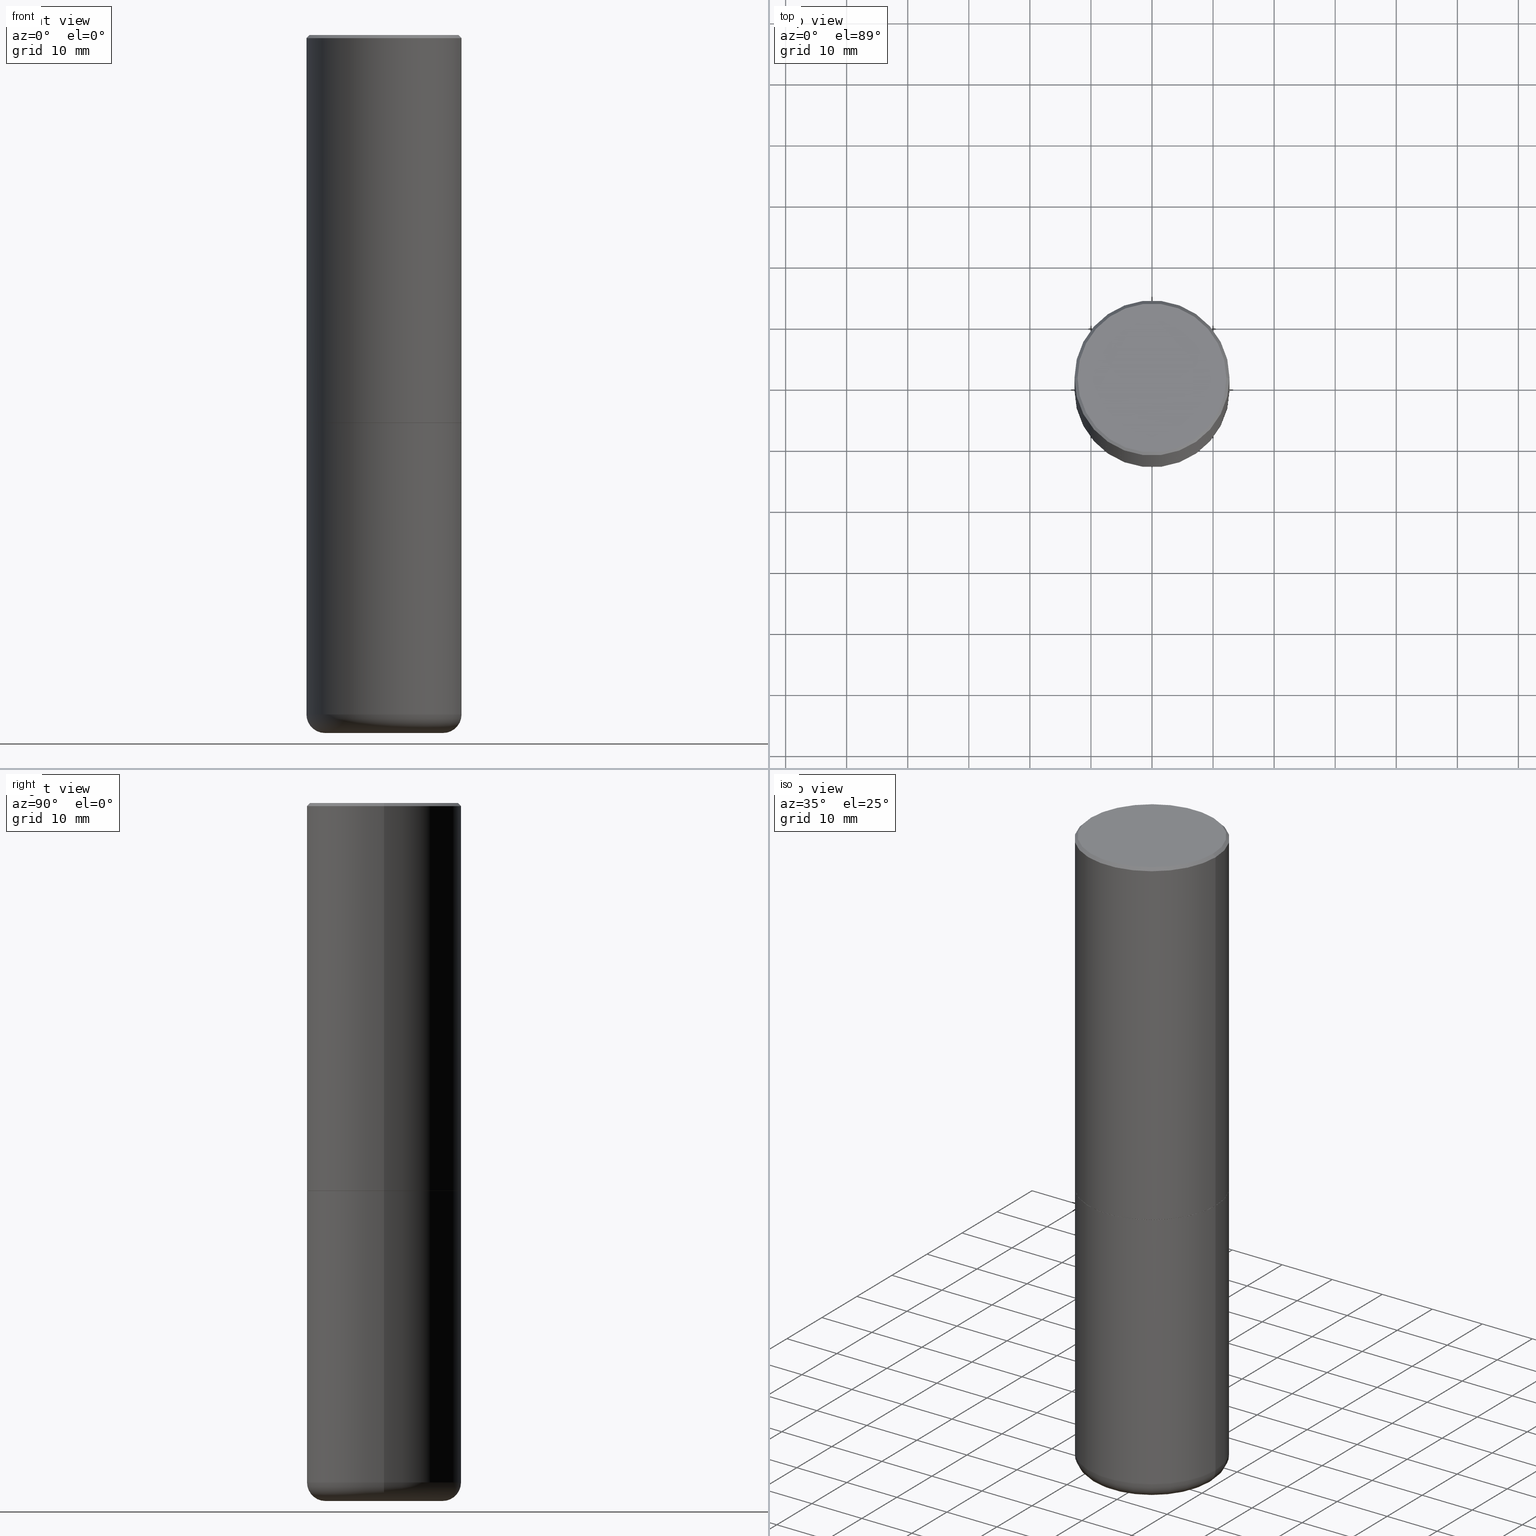
[diagram: canonical four-view strip — front | top / right | iso, engineering-drawing reading convention]
A machine part, canonical four-view strip (front | top / right | iso — engineering-drawing reading convention). The complete STEP part file that produces these views, byte-faithful:
ISO-10303-21;
HEADER;
FILE_DESCRIPTION (( 'STEP AP203' ),
    '1' );
FILE_NAME ('37148.STEP',
    '2024-03-01T21:03:04',
    ( '' ),
    ( '' ),
    'SwSTEP 2.0',
    'SolidWorks 2023',
    '' );
FILE_SCHEMA (( 'CONFIG_CONTROL_DESIGN' ));
ENDSEC;

DATA;
#1 = AXIS2_PLACEMENT_3D ( 'NONE', #98, #64, #35 ) ;
#2 = VECTOR ( 'NONE', #333, 39.37007874015748143 ) ;
#3 = CARTESIAN_POINT ( 'NONE',  ( 0.3799999999999999489, -1.836519184231493383E-14, -4.499999999999999112 ) ) ;
#4 = CYLINDRICAL_SURFACE ( 'NONE', #15, 0.5000000000000001110 ) ;
#5 = CARTESIAN_POINT ( 'NONE',  ( -0.4999999999999998335, -1.173997458533247776E-14, -4.379999999999999893 ) ) ;
#6 = DIRECTION ( 'NONE',  ( -2.445468806185136597E-29, 3.491481338843145583E-15, 1.000000000000000000 ) ) ;
#7 = CARTESIAN_POINT ( 'NONE',  ( 0.000000000000000000, 0.000000000000000000, 0.000000000000000000 ) ) ;
#8 = AXIS2_PLACEMENT_3D ( 'NONE', #146, #118, #50 ) ;
#9 = TOROIDAL_SURFACE ( 'NONE', #139, 0.3799999999999999489, 0.1199999999999996764 ) ;
#10 = DIRECTION ( 'NONE',  ( -2.445468806185136597E-29, 3.491481338843145583E-15, 1.000000000000000000 ) ) ;
#11 = ADVANCED_FACE ( 'NONE', ( #147 ), #414, .F. ) ;
#12 = CARTESIAN_POINT ( 'NONE',  ( 6.113672015462842613E-29, -8.728703347107864943E-15, -2.500000000000000000 ) ) ;
#13 = DIRECTION ( 'NONE',  ( 2.445468806185136597E-29, -3.491481338843145583E-15, -1.000000000000000000 ) ) ;
#14 = PERSON_AND_ORGANIZATION ( #163, #249 ) ;
#15 = AXIS2_PLACEMENT_3D ( 'NONE', #353, #357, #191 ) ;
#16 = PERSON_AND_ORGANIZATION_ROLE ( 'design_supplier' ) ;
#17 = CARTESIAN_POINT ( 'NONE',  ( 4.890937612370299433E-31, -6.982962677686328587E-17, -0.02000000000000010797 ) ) ;
#18 = ORIENTED_EDGE ( 'NONE', *, *, #137, .T. ) ;
#19 = APPLICATION_PROTOCOL_DEFINITION ( 'international standard', 'config_control_design', 1994, #94 ) ;
#20 = CALENDAR_DATE ( 2024, 1, 3 ) ;
#21 = DIRECTION ( 'NONE',  ( -2.445468806185136597E-29, 3.491481338843145583E-15, 1.000000000000000000 ) ) ;
#22 = VERTEX_POINT ( 'NONE', #25 ) ;
#23 =( NAMED_UNIT ( * ) PLANE_ANGLE_UNIT ( ) SI_UNIT ( $, .RADIAN. ) );
#24 = PRODUCT_DEFINITION_FORMATION_WITH_SPECIFIED_SOURCE ( 'ANY', '', #415, .NOT_KNOWN. ) ;
#25 = CARTESIAN_POINT ( 'NONE',  ( -0.5000000000000002220, -8.448070674724393209E-16, -2.499000000000000110 ) ) ;
#26 = EDGE_CURVE ( 'NONE', #251, #304, #90, .T. ) ;
#27 = PERSON_AND_ORGANIZATION ( #163, #249 ) ;
#28 = ORIENTED_EDGE ( 'NONE', *, *, #315, .T. ) ;
#29 = ORIENTED_EDGE ( 'NONE', *, *, #315, .F. ) ;
#30 = CLOSED_SHELL ( 'NONE', ( #154, #378, #11, #84, #349, #155 ) ) ;
#31 = ORIENTED_EDGE ( 'NONE', *, *, #293, .F. ) ;
#32 = CARTESIAN_POINT ( 'NONE',  ( 0.4989999999999999991, -1.221320172327331228E-14, -2.500000000000000000 ) ) ;
#33 = ADVANCED_BREP_SHAPE_REPRESENTATION ( '37148', ( #81, #223, #294 ), #389 ) ;
#34 = FACE_OUTER_BOUND ( 'NONE', #402, .T. ) ;
#35 = DIRECTION ( 'NONE',  ( 1.000000000000000000, -6.982962677686254878E-15, 0.000000000000000000 ) ) ;
#36 = VECTOR ( 'NONE', #356, 39.37007874015748143 ) ;
#37 = DIRECTION ( 'NONE',  ( 1.000000000000000000, -6.982962677686266711E-15, 0.000000000000000000 ) ) ;
#38 = PLANE ( 'NONE',  #85 ) ;
#39 = CC_DESIGN_APPROVAL ( #369, ( #24 ) ) ;
#40 = DIRECTION ( 'NONE',  ( -1.000000000000000000, 6.982962677686265922E-15, 0.000000000000000000 ) ) ;
#41 = ORIENTED_EDGE ( 'NONE', *, *, #124, .F. ) ;
#42 =( CONVERSION_BASED_UNIT ( 'INCH', #400 ) LENGTH_UNIT ( ) NAMED_UNIT ( #173 ) );
#43 = EDGE_LOOP ( 'NONE', ( #150, #361 ) ) ;
#44 = CONICAL_SURFACE ( 'NONE', #207, 0.5000000000000001110, 0.7853981633974458365 ) ;
#45 = CARTESIAN_POINT ( 'NONE',  ( 4.890937612370299433E-31, -6.982962677686328587E-17, -0.02000000000000010797 ) ) ;
#46 = UNCERTAINTY_MEASURE_WITH_UNIT (LENGTH_MEASURE( 1.000000000000000082E-05 ), #42, 'distance_accuracy_value', 'NONE');
#47 = DIRECTION ( 'NONE',  ( -2.445468806185136597E-29, 3.491481338843145583E-15, 1.000000000000000000 ) ) ;
#48 = CARTESIAN_POINT ( 'NONE',  ( 6.113672015462842613E-29, -8.728703347107864943E-15, -2.500000000000000000 ) ) ;
#49 = CARTESIAN_POINT ( 'NONE',  ( 1.071115337109089838E-28, -1.529268826413297711E-14, -4.379999999999999893 ) ) ;
#50 = DIRECTION ( 'NONE',  ( -1.000000000000000000, 6.982962677686265922E-15, -4.876176775795935793E-29 ) ) ;
#51 = CARTESIAN_POINT ( 'NONE',  ( -0.4989999999999999991, -5.177796641316741831E-15, -2.500000000000000000 ) ) ;
#52 = CONICAL_SURFACE ( 'NONE', #367, 0.5000000000000001110, 0.7853981633974458365 ) ;
#53 = EDGE_LOOP ( 'NONE', ( #277, #145 ) ) ;
#54 = CC_DESIGN_PERSON_AND_ORGANIZATION_ASSIGNMENT ( #204, #411, ( #130 ) ) ;
#55 = ORIENTED_EDGE ( 'NONE', *, *, #343, .T. ) ;
#56 = DATE_AND_TIME ( #129, #329 ) ;
#57 = EDGE_LOOP ( 'NONE', ( #309, #376, #18, #107 ) ) ;
#58 = EDGE_CURVE ( 'NONE', #250, #240, #161, .T. ) ;
#59 = CARTESIAN_POINT ( 'NONE',  ( 0.000000000000000000, 0.000000000000000000, 0.000000000000000000 ) ) ;
#60 = DIRECTION ( 'NONE',  ( -2.445468806185136597E-29, 3.491481338843145583E-15, 1.000000000000000000 ) ) ;
#61 = VECTOR ( 'NONE', #292, 39.37007874015748143 ) ;
#62 = CC_DESIGN_SECURITY_CLASSIFICATION ( #254, ( #24 ) ) ;
#63 = FACE_OUTER_BOUND ( 'NONE', #364, .T. ) ;
#64 = DIRECTION ( 'NONE',  ( -6.982962677686266711E-15, -1.000000000000000000, 3.491481338843145583E-15 ) ) ;
#65 = APPROVAL_DATE_TIME ( #393, #188 ) ;
#66 = DIRECTION ( 'NONE',  ( 1.000000000000000000, -6.982962677686266711E-15, 0.000000000000000000 ) ) ;
#67 = APPROVAL_PERSON_ORGANIZATION ( #274, #188, #406 ) ;
#68 = DIRECTION ( 'NONE',  ( 1.000000000000000000, -6.982962677686265922E-15, 0.000000000000000000 ) ) ;
#69 = CARTESIAN_POINT ( 'NONE',  ( 1.071115337109089838E-28, -1.529268826413297711E-14, -4.379999999999999893 ) ) ;
#70 = LINE ( 'NONE', #109, #96 ) ;
#71 = DIRECTION ( 'NONE',  ( 0.7071067811865457964, -7.319954787623249734E-15, -0.7071067811865492381 ) ) ;
#72 = ORIENTED_EDGE ( 'NONE', *, *, #293, .T. ) ;
#73 = DIRECTION ( 'NONE',  ( 1.000000000000000000, -6.982962677686266711E-15, 0.000000000000000000 ) ) ;
#74 = CIRCLE ( 'NONE', #317, 0.5000000000000002220 ) ;
#75 = AXIS2_PLACEMENT_3D ( 'NONE', #17, #331, #68 ) ;
#76 = CALENDAR_DATE ( 2024, 1, 3 ) ;
#77 = DIRECTION ( 'NONE',  ( -2.445468806185136597E-29, 3.491481338843145583E-15, 1.000000000000000000 ) ) ;
#78 = ADVANCED_FACE ( 'NONE', ( #280 ), #374, .F. ) ;
#79 = VERTEX_POINT ( 'NONE', #321 ) ;
#80 = CARTESIAN_POINT ( 'NONE',  ( 0.5000000000000002220, -1.221669320461215845E-14, -2.499000000000000110 ) ) ;
#81 = MANIFOLD_SOLID_BREP ( 'Body-Move/Copy2[1]', #30 ) ;
#82 = EDGE_CURVE ( 'NONE', #370, #119, #328, .T. ) ;
#83 = DIRECTION ( 'NONE',  ( 1.000000000000000000, -6.982962677686266711E-15, 4.878011538933552085E-29 ) ) ;
#84 = ADVANCED_FACE ( 'NONE', ( #286 ), #92, .T. ) ;
#85 = AXIS2_PLACEMENT_3D ( 'NONE', #158, #219, #291 ) ;
#86 = CARTESIAN_POINT ( 'NONE',  ( 6.113672015462842613E-29, -8.728703347107864943E-15, -2.500000000000000000 ) ) ;
#87 = ORIENTED_EDGE ( 'NONE', *, *, #58, .T. ) ;
#88 = APPROVAL ( #270, 'UNSPECIFIED' ) ;
#89 = ORIENTED_EDGE ( 'NONE', *, *, #58, .F. ) ;
#90 = CIRCLE ( 'NONE', #114, 0.1199999999999996764 ) ;
#91 = CIRCLE ( 'NONE', #156, 0.5000000000000001110 ) ;
#92 = CYLINDRICAL_SURFACE ( 'NONE', #232, 0.5000000000000000000 ) ;
#93 = EDGE_CURVE ( 'NONE', #251, #314, #221, .T. ) ;
#94 = APPLICATION_CONTEXT ( 'configuration controlled 3d designs of mechanical parts and assemblies' ) ;
#95 = CC_DESIGN_PERSON_AND_ORGANIZATION_ASSIGNMENT ( #112, #16, ( #24 ) ) ;
#96 = VECTOR ( 'NONE', #71, 39.37007874015748143 ) ;
#97 = MECHANICAL_CONTEXT ( 'NONE', #132, 'mechanical' ) ;
#98 = CARTESIAN_POINT ( 'NONE',  ( 0.3799999999999999489, -1.794621408165375720E-14, -4.379999999999999893 ) ) ;
#99 = ADVANCED_FACE ( 'NONE', ( #228 ), #4, .T. ) ;
#100 = CARTESIAN_POINT ( 'NONE',  ( 6.113672015462842613E-29, -8.728703347107864943E-15, -2.500000000000000000 ) ) ;
#101 = ORIENTED_EDGE ( 'NONE', *, *, #152, .F. ) ;
#102 = FACE_OUTER_BOUND ( 'NONE', #120, .T. ) ;
#103 = ORIENTED_EDGE ( 'NONE', *, *, #197, .T. ) ;
#104 = LOCAL_TIME ( 16, 3, 4.000000000000000000, #236 ) ;
#105 = CARTESIAN_POINT ( 'NONE',  ( -0.5000000000000000000, 3.552713678800500929E-15, -2.459467545127452891E-29 ) ) ;
#106 = EDGE_CURVE ( 'NONE', #307, #245, #380, .T. ) ;
#107 = ORIENTED_EDGE ( 'NONE', *, *, #296, .F. ) ;
#108 = CARTESIAN_POINT ( 'NONE',  ( 1.071115337109089838E-28, -1.529268826413297711E-14, -4.379999999999999893 ) ) ;
#109 = CARTESIAN_POINT ( 'NONE',  ( 0.5000000000000001110, -3.500078625662629868E-15, -0.02000000000000010797 ) ) ;
#110 = ORIENTED_EDGE ( 'NONE', *, *, #394, .T. ) ;
#111 = DIRECTION ( 'NONE',  ( 0.7071067811867165487, -2.468850131084027659E-15, 0.7071067811863784858 ) ) ;
#112 = PERSON_AND_ORGANIZATION ( #163, #249 ) ;
#113 = LINE ( 'NONE', #105, #259 ) ;
#114 = AXIS2_PLACEMENT_3D ( 'NONE', #278, #412, #246 ) ;
#115 = CARTESIAN_POINT ( 'NONE',  ( 0.5000000000000001110, -3.491481338843134539E-15, 2.438088387897968457E-29 ) ) ;
#116 = LOCAL_TIME ( 16, 3, 4.000000000000000000, #241 ) ;
#117 = APPROVAL_STATUS ( 'not_yet_approved' ) ;
#118 = DIRECTION ( 'NONE',  ( 2.438088387897960049E-29, -3.491481338843145188E-15, -1.000000000000000000 ) ) ;
#119 = VERTEX_POINT ( 'NONE', #391 ) ;
#120 = EDGE_LOOP ( 'NONE', ( #170, #176, #55, #395 ) ) ;
#121 = CLOSED_SHELL ( 'NONE', ( #222, #99, #269, #242, #398, #252, #78, #326 ) ) ;
#122 = DIRECTION ( 'NONE',  ( -2.445468806185136597E-29, 3.491481338843145583E-15, 1.000000000000000000 ) ) ;
#123 = ORIENTED_EDGE ( 'NONE', *, *, #181, .T. ) ;
#124 = EDGE_CURVE ( 'NONE', #22, #344, #253, .T. ) ;
#125 = DESIGN_CONTEXT ( 'detailed design', #94, 'design' ) ;
#126 = ORIENTED_EDGE ( 'NONE', *, *, #366, .T. ) ;
#127 = DIRECTION ( 'NONE',  ( -2.445468806185136597E-29, 3.491481338843145583E-15, 1.000000000000000000 ) ) ;
#128 = AXIS2_PLACEMENT_3D ( 'NONE', #203, #334, #174 ) ;
#129 = CALENDAR_DATE ( 2024, 1, 3 ) ;
#130 = PRODUCT_DEFINITION ( 'UNKNOWN', '', #24, #125 ) ;
#131 = DIRECTION ( 'NONE',  ( -2.438088387897960049E-29, 3.491481338843145188E-15, 1.000000000000000000 ) ) ;
#132 = APPLICATION_CONTEXT ( 'configuration controlled 3d designs of mechanical parts and assemblies' ) ;
#133 = DIRECTION ( 'NONE',  ( 1.000000000000000000, -6.982962677686261977E-15, 0.000000000000000000 ) ) ;
#134 = DIRECTION ( 'NONE',  ( 0.000000000000000000, 0.000000000000000000, 1.000000000000000000 ) ) ;
#135 = DIRECTION ( 'NONE',  ( -2.445468806185136597E-29, 3.491481338843145583E-15, 1.000000000000000000 ) ) ;
#136 = CIRCLE ( 'NONE', #339, 0.4799999999999998157 ) ;
#137 = EDGE_CURVE ( 'NONE', #314, #79, #258, .T. ) ;
#138 = DIRECTION ( 'NONE',  ( -1.000000000000000000, 6.982962677686265922E-15, 0.000000000000000000 ) ) ;
#139 = AXIS2_PLACEMENT_3D ( 'NONE', #69, #77, #403 ) ;
#140 = CARTESIAN_POINT ( 'NONE',  ( -0.5000000000000001110, 3.421651712066270452E-15, -0.02000000000000010797 ) ) ;
#141 = PERSON_AND_ORGANIZATION_ROLE ( 'classification_officer' ) ;
#142 = DIRECTION ( 'NONE',  ( -2.445468806185136597E-29, 3.491481338843145583E-15, 1.000000000000000000 ) ) ;
#143 = PERSON_AND_ORGANIZATION ( #163, #249 ) ;
#144 = SECURITY_CLASSIFICATION_LEVEL ( 'unclassified' ) ;
#145 = ORIENTED_EDGE ( 'NONE', *, *, #106, .T. ) ;
#146 = CARTESIAN_POINT ( 'NONE',  ( 6.113672015462842613E-29, -8.728703347107864943E-15, -2.500000000000000000 ) ) ;
#147 = FACE_OUTER_BOUND ( 'NONE', #53, .T. ) ;
#148 = ORIENTED_EDGE ( 'NONE', *, *, #405, .F. ) ;
#149 = APPROVAL_PERSON_ORGANIZATION ( #143, #88, #284 ) ;
#150 = ORIENTED_EDGE ( 'NONE', *, *, #394, .F. ) ;
#151 = CARTESIAN_POINT ( 'NONE',  ( 6.111226546656657010E-29, -8.725211865769021935E-15, -2.499000000000000110 ) ) ;
#152 = EDGE_CURVE ( 'NONE', #314, #251, #287, .T. ) ;
#153 = CARTESIAN_POINT ( 'NONE',  ( 6.113672015462842613E-29, -8.728703347107864943E-15, -2.500000000000000000 ) ) ;
#154 = ADVANCED_FACE ( 'NONE', ( #387 ), #224, .T. ) ;
#155 = ADVANCED_FACE ( 'NONE', ( #34 ), #159, .T. ) ;
#156 = AXIS2_PLACEMENT_3D ( 'NONE', #108, #47, #212 ) ;
#157 = CARTESIAN_POINT ( 'NONE',  ( 1.100460962783311244E-28, -1.571166602479415374E-14, -4.499999999999999112 ) ) ;
#158 = CARTESIAN_POINT ( 'NONE',  ( 3.351822085289406364E-15, 0.4799999999999998157, -1.547855667941696890E-15 ) ) ;
#159 = PLANE ( 'NONE',  #388 ) ;
#160 = CC_DESIGN_PERSON_AND_ORGANIZATION_ASSIGNMENT ( #14, #336, ( #415 ) ) ;
#161 = CIRCLE ( 'NONE', #282, 0.4799999999999998157 ) ;
#162 = APPROVAL_PERSON_ORGANIZATION ( #288, #369, #385 ) ;
#163 = PERSON ( 'UNSPECIFIED', 'UNSPECIFIED', 'UNSPECIFIED', ('UNSPECIFIED'), ('UNSPECIFIED'), ('UNSPECIFIED') ) ;
#164 = FACE_OUTER_BOUND ( 'NONE', #375, .T. ) ;
#165 = ORIENTED_EDGE ( 'NONE', *, *, #382, .T. ) ;
#166 = FACE_OUTER_BOUND ( 'NONE', #416, .T. ) ;
#167 = CC_DESIGN_DATE_AND_TIME_ASSIGNMENT ( #56, #239, ( #130 ) ) ;
#168 = EDGE_CURVE ( 'NONE', #370, #22, #354, .T. ) ;
#169 = AXIS2_PLACEMENT_3D ( 'NONE', #59, #289, #319 ) ;
#170 = ORIENTED_EDGE ( 'NONE', *, *, #168, .F. ) ;
#171 = CIRCLE ( 'NONE', #179, 0.5000000000000001110 ) ;
#172 = CYLINDRICAL_SURFACE ( 'NONE', #234, 0.5000000000000001110 ) ;
#173 = DIMENSIONAL_EXPONENTS ( 1.000000000000000000, 0.000000000000000000, 0.000000000000000000, 0.000000000000000000, 0.000000000000000000, 0.000000000000000000, 0.000000000000000000 ) ;
#174 = DIRECTION ( 'NONE',  ( 1.000000000000000000, -6.982962677686265922E-15, 0.000000000000000000 ) ) ;
#175 = DIRECTION ( 'NONE',  ( 1.000000000000000000, -6.982962677686267499E-15, 4.876176775795935793E-29 ) ) ;
#176 = ORIENTED_EDGE ( 'NONE', *, *, #82, .T. ) ;
#177 = CARTESIAN_POINT ( 'NONE',  ( 0.000000000000000000, 0.000000000000000000, 0.000000000000000000 ) ) ;
#178 = EDGE_LOOP ( 'NONE', ( #123, #184, #330, #148 ) ) ;
#179 = AXIS2_PLACEMENT_3D ( 'NONE', #49, #255, #320 ) ;
#180 = ORIENTED_EDGE ( 'NONE', *, *, #201, .T. ) ;
#181 = EDGE_CURVE ( 'NONE', #347, #22, #74, .T. ) ;
#182 = APPROVAL_STATUS ( 'not_yet_approved' ) ;
#183 = ORIENTED_EDGE ( 'NONE', *, *, #235, .F. ) ;
#184 = ORIENTED_EDGE ( 'NONE', *, *, #124, .T. ) ;
#185 = TOROIDAL_SURFACE ( 'NONE', #368, 0.3799999999999999489, 0.1199999999999996764 ) ;
#186 = CIRCLE ( 'NONE', #325, 0.5000000000000000000 ) ;
#187 = DIRECTION ( 'NONE',  ( -2.445468806185136597E-29, 3.491481338843145583E-15, 1.000000000000000000 ) ) ;
#188 = APPROVAL ( #117, 'UNSPECIFIED' ) ;
#189 = CARTESIAN_POINT ( 'NONE',  ( 6.113672015462842613E-29, -8.728703347107864943E-15, -2.500000000000000000 ) ) ;
#190 = AXIS2_PLACEMENT_3D ( 'NONE', #48, #390, #73 ) ;
#191 = DIRECTION ( 'NONE',  ( 1.000000000000000000, -6.982962677686267499E-15, 4.876176775795935793E-29 ) ) ;
#192 = CARTESIAN_POINT ( 'NONE',  ( -0.5000000000000000000, -8.457982126819920096E-15, -2.500000000000000000 ) ) ;
#193 = DIRECTION ( 'NONE',  ( -1.000000000000000000, 6.982962677686265922E-15, -4.876176775795935793E-29 ) ) ;
#194 = VECTOR ( 'NONE', #379, 39.37007874015748143 ) ;
#195 = CARTESIAN_POINT ( 'NONE',  ( 0.4799999999999998157, -3.396558832296481310E-15, 2.561107494060482809E-16 ) ) ;
#196 = CC_DESIGN_APPROVAL ( #88, ( #130 ) ) ;
#197 = EDGE_CURVE ( 'NONE', #304, #307, #113, .T. ) ;
#198 = DATE_AND_TIME ( #20, #104 ) ;
#199 = FACE_OUTER_BOUND ( 'NONE', #335, .T. ) ;
#200 = ORIENTED_EDGE ( 'NONE', *, *, #168, .T. ) ;
#201 = EDGE_CURVE ( 'NONE', #281, #344, #352, .T. ) ;
#202 = LINE ( 'NONE', #365, #2 ) ;
#203 = CARTESIAN_POINT ( 'NONE',  ( 4.890937612370299433E-31, -6.982962677686328587E-17, -0.02000000000000010797 ) ) ;
#204 = PERSON_AND_ORGANIZATION ( #163, #249 ) ;
#205 = APPLICATION_PROTOCOL_DEFINITION ( 'international standard', 'config_control_design', 1994, #132 ) ;
#206 = CARTESIAN_POINT ( 'NONE',  ( -0.3799999999999999489, -1.237578910711912656E-14, -4.499999999999999112 ) ) ;
#207 = AXIS2_PLACEMENT_3D ( 'NONE', #45, #13, #138 ) ;
#208 = FACE_OUTER_BOUND ( 'NONE', #57, .T. ) ;
#209 = DATE_AND_TIME ( #76, #381 ) ;
#210 = PRODUCT_RELATED_PRODUCT_CATEGORY ( 'detail', '', ( #415 ) ) ;
#211 = ORIENTED_EDGE ( 'NONE', *, *, #343, .F. ) ;
#212 = DIRECTION ( 'NONE',  ( 1.000000000000000000, -6.982962677686269077E-15, 0.000000000000000000 ) ) ;
#213 = ORIENTED_EDGE ( 'NONE', *, *, #296, .T. ) ;
#214 = CIRCLE ( 'NONE', #190, 0.4989999999999999991 ) ;
#215 = ORIENTED_EDGE ( 'NONE', *, *, #152, .T. ) ;
#216 = CARTESIAN_POINT ( 'NONE',  ( -6.263108486011318684E-45, 8.942059022282684186E-31, 2.561107494060246644E-16 ) ) ;
#217 = ORIENTED_EDGE ( 'NONE', *, *, #382, .F. ) ;
#218 = EDGE_CURVE ( 'NONE', #22, #347, #355, .T. ) ;
#219 = DIRECTION ( 'NONE',  ( 2.438088387897960049E-29, -3.491481338843145188E-15, -1.000000000000000000 ) ) ;
#220 = EDGE_LOOP ( 'NONE', ( #110, #200, #350, #211 ) ) ;
#221 = CIRCLE ( 'NONE', #337, 0.3799999999999999489 ) ;
#222 = ADVANCED_FACE ( 'NONE', ( #295 ), #408, .T. ) ;
#223 = MANIFOLD_SOLID_BREP ( 'Body-Move/Copy2[2]', #121 ) ;
#224 = CYLINDRICAL_SURFACE ( 'NONE', #169, 0.5000000000000000000 ) ;
#225 = CC_DESIGN_PERSON_AND_ORGANIZATION_ASSIGNMENT ( #27, #413, ( #24 ) ) ;
#226 = CARTESIAN_POINT ( 'NONE',  ( -0.5000000000000001110, 3.421651712066270452E-15, -0.02000000000000010797 ) ) ;
#227 = AXIS2_PLACEMENT_3D ( 'NONE', #363, #233, #338 ) ;
#228 = FACE_OUTER_BOUND ( 'NONE', #178, .T. ) ;
#229 = CARTESIAN_POINT ( 'NONE',  ( -0.5000000000000001110, 3.552713678800501718E-15, -2.459467545127453732E-29 ) ) ;
#230 = DIRECTION ( 'NONE',  ( 2.445468806185136597E-29, -3.491481338843145583E-15, -1.000000000000000000 ) ) ;
#231 = EDGE_LOOP ( 'NONE', ( #41, #348, #316, #266 ) ) ;
#232 = AXIS2_PLACEMENT_3D ( 'NONE', #7, #135, #290 ) ;
#233 = DIRECTION ( 'NONE',  ( -2.445468806185136597E-29, 3.491481338843145583E-15, 1.000000000000000000 ) ) ;
#234 = AXIS2_PLACEMENT_3D ( 'NONE', #177, #21, #175 ) ;
#235 = EDGE_CURVE ( 'NONE', #245, #307, #186, .T. ) ;
#236 = COORDINATED_UNIVERSAL_TIME_OFFSET ( 5, 0, .BEHIND. ) ;
#237 = DATE_TIME_ROLE ( 'classification_date' ) ;
#238 =( LENGTH_UNIT ( ) NAMED_UNIT ( * ) SI_UNIT ( $, .METRE. ) );
#239 = DATE_TIME_ROLE ( 'creation_date' ) ;
#240 = VERTEX_POINT ( 'NONE', #195 ) ;
#241 = COORDINATED_UNIVERSAL_TIME_OFFSET ( 5, 0, .BEHIND. ) ;
#242 = ADVANCED_FACE ( 'NONE', ( #164 ), #52, .T. ) ;
#243 = DIRECTION ( 'NONE',  ( 1.000000000000000000, -6.982962677686266711E-15, 4.878011538933552085E-29 ) ) ;
#244 = VECTOR ( 'NONE', #273, 39.37007874015748143 ) ;
#245 = VERTEX_POINT ( 'NONE', #298 ) ;
#246 = DIRECTION ( 'NONE',  ( -1.000000000000000000, 7.105427357600993970E-15, 0.000000000000000000 ) ) ;
#247 = CARTESIAN_POINT ( 'NONE',  ( -6.263108486011318684E-45, 8.942059022282684186E-31, 2.561107494060246644E-16 ) ) ;
#248 = EDGE_CURVE ( 'NONE', #240, #281, #70, .T. ) ;
#249 = ORGANIZATION ( 'UNSPECIFIED', 'UNSPECIFIED', '' ) ;
#250 = VERTEX_POINT ( 'NONE', #263 ) ;
#251 = VERTEX_POINT ( 'NONE', #206 ) ;
#252 = ADVANCED_FACE ( 'NONE', ( #102 ), #373, .T. ) ;
#253 = LINE ( 'NONE', #229, #194 ) ;
#254 = SECURITY_CLASSIFICATION ( '', '', #144 ) ;
#255 = DIRECTION ( 'NONE',  ( -2.445468806185136597E-29, 3.491481338843145583E-15, 1.000000000000000000 ) ) ;
#256 = CARTESIAN_POINT ( 'NONE',  ( 1.552270260751276823E-28, -9.241499724010371666E-15, -4.499999999999999112 ) ) ;
#257 = CARTESIAN_POINT ( 'NONE',  ( -0.4989999999999999991, -5.183095095664965021E-15, -2.500000000000000000 ) ) ;
#258 = CIRCLE ( 'NONE', #1, 0.1199999999999996764 ) ;
#259 = VECTOR ( 'NONE', #302, 39.37007874015748143 ) ;
#260 = DIRECTION ( 'NONE',  ( 1.000000000000000000, -6.982962677686261977E-15, 0.000000000000000000 ) ) ;
#261 = CC_DESIGN_PERSON_AND_ORGANIZATION_ASSIGNMENT ( #262, #141, ( #254 ) ) ;
#262 = PERSON_AND_ORGANIZATION ( #163, #249 ) ;
#263 = CARTESIAN_POINT ( 'NONE',  ( -0.4799999999999998157, 3.386736898677839197E-15, 2.561107494060010972E-16 ) ) ;
#264 = AXIS2_PLACEMENT_3D ( 'NONE', #86, #131, #327 ) ;
#265 = AXIS2_PLACEMENT_3D ( 'NONE', #12, #10, #66 ) ;
#266 = ORIENTED_EDGE ( 'NONE', *, *, #279, .F. ) ;
#267 = DIRECTION ( 'NONE',  ( 1.000000000000000000, -6.982962677686267499E-15, 4.883557194083114022E-29 ) ) ;
#268 = CALENDAR_DATE ( 2024, 1, 3 ) ;
#269 = ADVANCED_FACE ( 'NONE', ( #199 ), #44, .T. ) ;
#270 = APPROVAL_STATUS ( 'not_yet_approved' ) ;
#271 = DIRECTION ( 'NONE',  ( -2.445468806185136597E-29, 3.491481338843145583E-15, 1.000000000000000000 ) ) ;
#272 = ORIENTED_EDGE ( 'NONE', *, *, #279, .T. ) ;
#273 = DIRECTION ( 'NONE',  ( -2.445468806185136877E-29, 3.491481338843145188E-15, 1.000000000000000000 ) ) ;
#274 = PERSON_AND_ORGANIZATION ( #163, #249 ) ;
#275 = PRODUCT_DEFINITION_SHAPE ( 'NONE', 'NONE',  #130 ) ;
#276 = VECTOR ( 'NONE', #111, 39.37007874015748143 ) ;
#277 = ORIENTED_EDGE ( 'NONE', *, *, #235, .T. ) ;
#278 = CARTESIAN_POINT ( 'NONE',  ( -0.3799999999999999489, -1.259262586824459716E-14, -4.379999999999999893 ) ) ;
#279 = EDGE_CURVE ( 'NONE', #344, #281, #359, .T. ) ;
#280 = FACE_OUTER_BOUND ( 'NONE', #43, .T. ) ;
#281 = VERTEX_POINT ( 'NONE', #306 ) ;
#282 = AXIS2_PLACEMENT_3D ( 'NONE', #247, #371, #83 ) ;
#283 = EDGE_LOOP ( 'NONE', ( #126, #103, #183, #217 ) ) ;
#284 = APPROVAL_ROLE ( '' ) ;
#285 = DIRECTION ( 'NONE',  ( -2.445468806185136597E-29, 3.491481338843145583E-15, 1.000000000000000000 ) ) ;
#286 = FACE_OUTER_BOUND ( 'NONE', #351, .T. ) ;
#287 = CIRCLE ( 'NONE', #372, 0.3799999999999999489 ) ;
#288 = PERSON_AND_ORGANIZATION ( #163, #249 ) ;
#289 = DIRECTION ( 'NONE',  ( -2.445468806185136597E-29, 3.491481338843145583E-15, 1.000000000000000000 ) ) ;
#290 = DIRECTION ( 'NONE',  ( 1.000000000000000000, -6.982962677686266711E-15, 4.876176775795935793E-29 ) ) ;
#291 = DIRECTION ( 'NONE',  ( -1.000000000000000000, 6.982962677686265922E-15, -4.876176775795935793E-29 ) ) ;
#292 = DIRECTION ( 'NONE',  ( -0.7071067811867165487, 7.493145998870964739E-15, 0.7071067811863784858 ) ) ;
#293 = EDGE_CURVE ( 'NONE', #240, #250, #136, .T. ) ;
#294 = AXIS2_PLACEMENT_3D ( 'NONE', #345, #134, #305 ) ;
#295 = FACE_OUTER_BOUND ( 'NONE', #220, .T. ) ;
#296 = EDGE_CURVE ( 'NONE', #304, #79, #171, .T. ) ;
#297 = SHAPE_DEFINITION_REPRESENTATION ( #275, #33 ) ;
#298 = CARTESIAN_POINT ( 'NONE',  ( 0.5000000000000000000, -1.222018468595099830E-14, -2.500000000000000000 ) ) ;
#299 = DIRECTION ( 'NONE',  ( 1.000000000000000000, -6.982962677686269077E-15, 0.000000000000000000 ) ) ;
#300 = ORIENTED_EDGE ( 'NONE', *, *, #93, .F. ) ;
#301 = CC_DESIGN_DATE_AND_TIME_ASSIGNMENT ( #209, #237, ( #254 ) ) ;
#302 = DIRECTION ( 'NONE',  ( -2.445468806185136877E-29, 3.491481338843145188E-15, 1.000000000000000000 ) ) ;
#303 = AXIS2_PLACEMENT_3D ( 'NONE', #392, #271, #358 ) ;
#304 = VERTEX_POINT ( 'NONE', #5 ) ;
#305 = DIRECTION ( 'NONE',  ( 1.000000000000000000, 0.000000000000000000, 0.000000000000000000 ) ) ;
#306 = CARTESIAN_POINT ( 'NONE',  ( 0.5000000000000001110, -3.500078625662629868E-15, -0.02000000000000010797 ) ) ;
#307 = VERTEX_POINT ( 'NONE', #192 ) ;
#308 = DIRECTION ( 'NONE',  ( -2.445468806185136597E-29, 3.491481338843145583E-15, 1.000000000000000000 ) ) ;
#309 = ORIENTED_EDGE ( 'NONE', *, *, #26, .F. ) ;
#310 = LINE ( 'NONE', #115, #244 ) ;
#311 = ORIENTED_EDGE ( 'NONE', *, *, #248, .T. ) ;
#312 = APPROVAL_DATE_TIME ( #198, #369 ) ;
#313 = ORIENTED_EDGE ( 'NONE', *, *, #366, .F. ) ;
#314 = VERTEX_POINT ( 'NONE', #3 ) ;
#315 = EDGE_CURVE ( 'NONE', #250, #344, #386, .T. ) ;
#316 = ORIENTED_EDGE ( 'NONE', *, *, #405, .T. ) ;
#317 = AXIS2_PLACEMENT_3D ( 'NONE', #151, #285, #418 ) ;
#318 = LINE ( 'NONE', #32, #276 ) ;
#319 = DIRECTION ( 'NONE',  ( 1.000000000000000000, -6.982962677686266711E-15, 4.876176775795935793E-29 ) ) ;
#320 = DIRECTION ( 'NONE',  ( 1.000000000000000000, -6.982962677686269077E-15, 0.000000000000000000 ) ) ;
#321 = CARTESIAN_POINT ( 'NONE',  ( 0.4999999999999998335, -1.878416960297611046E-14, -4.379999999999999893 ) ) ;
#322 = DIRECTION ( 'NONE',  ( 1.000000000000000000, -6.982962677686269077E-15, 0.000000000000000000 ) ) ;
#323 = APPROVAL_DATE_TIME ( #377, #88 ) ;
#324 = AXIS2_PLACEMENT_3D ( 'NONE', #189, #127, #322 ) ;
#325 = AXIS2_PLACEMENT_3D ( 'NONE', #100, #142, #299 ) ;
#326 = ADVANCED_FACE ( 'NONE', ( #63 ), #38, .F. ) ;
#327 = DIRECTION ( 'NONE',  ( 1.000000000000000000, -6.982962677686265922E-15, 4.876176775795935793E-29 ) ) ;
#328 = CIRCLE ( 'NONE', #407, 0.4989999999999999991 ) ;
#329 = LOCAL_TIME ( 16, 3, 4.000000000000000000, #397 ) ;
#330 = ORIENTED_EDGE ( 'NONE', *, *, #201, .F. ) ;
#331 = DIRECTION ( 'NONE',  ( -2.445468806185136597E-29, 3.491481338843145583E-15, 1.000000000000000000 ) ) ;
#332 = ORIENTED_EDGE ( 'NONE', *, *, #248, .F. ) ;
#333 = DIRECTION ( 'NONE',  ( -2.445468806185136877E-29, 3.491481338843145188E-15, 1.000000000000000000 ) ) ;
#334 = DIRECTION ( 'NONE',  ( -2.445468806185136597E-29, 3.491481338843145583E-15, 1.000000000000000000 ) ) ;
#335 = EDGE_LOOP ( 'NONE', ( #31, #311, #180, #29 ) ) ;
#336 = PERSON_AND_ORGANIZATION_ROLE ( 'design_owner' ) ;
#337 = AXIS2_PLACEMENT_3D ( 'NONE', #383, #187, #260 ) ;
#338 = DIRECTION ( 'NONE',  ( 1.000000000000000000, -6.982962677686266711E-15, 0.000000000000000000 ) ) ;
#339 = AXIS2_PLACEMENT_3D ( 'NONE', #216, #122, #243 ) ;
#340 = ORIENTED_EDGE ( 'NONE', *, *, #197, .F. ) ;
#341 = CARTESIAN_POINT ( 'NONE',  ( 1.071115337109089838E-28, -1.529268826413297711E-14, -4.379999999999999893 ) ) ;
#342 = FACE_OUTER_BOUND ( 'NONE', #231, .T. ) ;
#343 = EDGE_CURVE ( 'NONE', #119, #347, #318, .T. ) ;
#344 = VERTEX_POINT ( 'NONE', #140 ) ;
#345 = CARTESIAN_POINT ( 'NONE',  ( 0.000000000000000000, 0.000000000000000000, 0.000000000000000000 ) ) ;
#346 = LOCAL_TIME ( 16, 3, 4.000000000000000000, #360 ) ;
#347 = VERTEX_POINT ( 'NONE', #80 ) ;
#348 = ORIENTED_EDGE ( 'NONE', *, *, #218, .T. ) ;
#349 = ADVANCED_FACE ( 'NONE', ( #208 ), #185, .T. ) ;
#350 = ORIENTED_EDGE ( 'NONE', *, *, #181, .F. ) ;
#351 = EDGE_LOOP ( 'NONE', ( #340, #213, #165, #409 ) ) ;
#352 = CIRCLE ( 'NONE', #75, 0.5000000000000001110 ) ;
#353 = CARTESIAN_POINT ( 'NONE',  ( 0.000000000000000000, 0.000000000000000000, 0.000000000000000000 ) ) ;
#354 = LINE ( 'NONE', #257, #61 ) ;
#355 = CIRCLE ( 'NONE', #303, 0.5000000000000002220 ) ;
#356 = DIRECTION ( 'NONE',  ( -0.7071067811865457964, 2.468850131082238917E-15, -0.7071067811865492381 ) ) ;
#357 = DIRECTION ( 'NONE',  ( -2.445468806185136597E-29, 3.491481338843145583E-15, 1.000000000000000000 ) ) ;
#358 = DIRECTION ( 'NONE',  ( 1.000000000000000000, -6.982962677686269866E-15, 0.000000000000000000 ) ) ;
#359 = CIRCLE ( 'NONE', #128, 0.5000000000000001110 ) ;
#360 = COORDINATED_UNIVERSAL_TIME_OFFSET ( 5, 0, .BEHIND. ) ;
#361 = ORIENTED_EDGE ( 'NONE', *, *, #82, .F. ) ;
#362 = CALENDAR_DATE ( 2024, 1, 3 ) ;
#363 = CARTESIAN_POINT ( 'NONE',  ( 6.113672015462842613E-29, -8.728703347107864943E-15, -2.500000000000000000 ) ) ;
#364 = EDGE_LOOP ( 'NONE', ( #87, #72 ) ) ;
#365 = CARTESIAN_POINT ( 'NONE',  ( 0.5000000000000000000, -3.491481338843133355E-15, 2.438088387897967896E-29 ) ) ;
#366 = EDGE_CURVE ( 'NONE', #79, #304, #91, .T. ) ;
#367 = AXIS2_PLACEMENT_3D ( 'NONE', #401, #230, #40 ) ;
#368 = AXIS2_PLACEMENT_3D ( 'NONE', #341, #308, #267 ) ;
#369 = APPROVAL ( #182, 'UNSPECIFIED' ) ;
#370 = VERTEX_POINT ( 'NONE', #51 ) ;
#371 = DIRECTION ( 'NONE',  ( -2.445468806185136597E-29, 3.491481338843145583E-15, 1.000000000000000000 ) ) ;
#372 = AXIS2_PLACEMENT_3D ( 'NONE', #157, #6, #133 ) ;
#373 = CONICAL_SURFACE ( 'NONE', #227, 0.4989999999999999991, 0.7853981633976873100 ) ;
#374 = PLANE ( 'NONE',  #264 ) ;
#375 = EDGE_LOOP ( 'NONE', ( #332, #89, #28, #272 ) ) ;
#376 = ORIENTED_EDGE ( 'NONE', *, *, #93, .T. ) ;
#377 = DATE_AND_TIME ( #362, #116 ) ;
#378 = ADVANCED_FACE ( 'NONE', ( #166 ), #9, .T. ) ;
#379 = DIRECTION ( 'NONE',  ( -2.445468806185136877E-29, 3.491481338843145188E-15, 1.000000000000000000 ) ) ;
#380 = CIRCLE ( 'NONE', #324, 0.5000000000000000000 ) ;
#381 = LOCAL_TIME ( 16, 3, 4.000000000000000000, #404 ) ;
#382 = EDGE_CURVE ( 'NONE', #79, #245, #202, .T. ) ;
#383 = CARTESIAN_POINT ( 'NONE',  ( 1.100460962783311244E-28, -1.571166602479415374E-14, -4.499999999999999112 ) ) ;
#384 = DIRECTION ( 'NONE',  ( 2.438088387897960049E-29, -3.491481338843145188E-15, -1.000000000000000000 ) ) ;
#385 = APPROVAL_ROLE ( '' ) ;
#386 = LINE ( 'NONE', #226, #36 ) ;
#387 = FACE_OUTER_BOUND ( 'NONE', #283, .T. ) ;
#388 = AXIS2_PLACEMENT_3D ( 'NONE', #256, #384, #193 ) ;
#389 =( GEOMETRIC_REPRESENTATION_CONTEXT ( 3 ) GLOBAL_UNCERTAINTY_ASSIGNED_CONTEXT ( ( #46 ) ) GLOBAL_UNIT_ASSIGNED_CONTEXT ( ( #42, #23, #410 ) ) REPRESENTATION_CONTEXT ( 'NONE', 'WORKASPACE' ) );
#390 = DIRECTION ( 'NONE',  ( -2.445468806185136597E-29, 3.491481338843145583E-15, 1.000000000000000000 ) ) ;
#391 = CARTESIAN_POINT ( 'NONE',  ( 0.4989999999999999991, -1.221320172327331228E-14, -2.500000000000000000 ) ) ;
#392 = CARTESIAN_POINT ( 'NONE',  ( 6.111226546656657010E-29, -8.725211865769021935E-15, -2.499000000000000110 ) ) ;
#393 = DATE_AND_TIME ( #268, #346 ) ;
#394 = EDGE_CURVE ( 'NONE', #119, #370, #214, .T. ) ;
#395 = ORIENTED_EDGE ( 'NONE', *, *, #218, .F. ) ;
#396 = CC_DESIGN_APPROVAL ( #188, ( #254 ) ) ;
#397 = COORDINATED_UNIVERSAL_TIME_OFFSET ( 5, 0, .BEHIND. ) ;
#398 = ADVANCED_FACE ( 'NONE', ( #342 ), #172, .T. ) ;
#399 = ORIENTED_EDGE ( 'NONE', *, *, #137, .F. ) ;
#400 = LENGTH_MEASURE_WITH_UNIT ( LENGTH_MEASURE( 0.02539999999999999897 ), #238 );
#401 = CARTESIAN_POINT ( 'NONE',  ( 4.890937612370299433E-31, -6.982962677686328587E-17, -0.02000000000000010797 ) ) ;
#402 = EDGE_LOOP ( 'NONE', ( #101, #300 ) ) ;
#403 = DIRECTION ( 'NONE',  ( 1.000000000000000000, -6.982962677686267499E-15, 4.883557194083114022E-29 ) ) ;
#404 = COORDINATED_UNIVERSAL_TIME_OFFSET ( 5, 0, .BEHIND. ) ;
#405 = EDGE_CURVE ( 'NONE', #347, #281, #310, .T. ) ;
#406 = APPROVAL_ROLE ( '' ) ;
#407 = AXIS2_PLACEMENT_3D ( 'NONE', #153, #60, #37 ) ;
#408 = CONICAL_SURFACE ( 'NONE', #265, 0.4989999999999999991, 0.7853981633976873100 ) ;
#409 = ORIENTED_EDGE ( 'NONE', *, *, #106, .F. ) ;
#410 =( NAMED_UNIT ( * ) SI_UNIT ( $, .STERADIAN. ) SOLID_ANGLE_UNIT ( ) );
#411 = PERSON_AND_ORGANIZATION_ROLE ( 'creator' ) ;
#412 = DIRECTION ( 'NONE',  ( 7.105427357601001859E-15, 1.000000000000000000, -3.491481338843145583E-15 ) ) ;
#413 = PERSON_AND_ORGANIZATION_ROLE ( 'creator' ) ;
#414 = PLANE ( 'NONE',  #8 ) ;
#415 = PRODUCT ( '37148', '37148', '', ( #97 ) ) ;
#416 = EDGE_LOOP ( 'NONE', ( #215, #417, #313, #399 ) ) ;
#417 = ORIENTED_EDGE ( 'NONE', *, *, #26, .T. ) ;
#418 = DIRECTION ( 'NONE',  ( 1.000000000000000000, -6.982962677686269866E-15, 0.000000000000000000 ) ) ;
ENDSEC;
END-ISO-10303-21;
